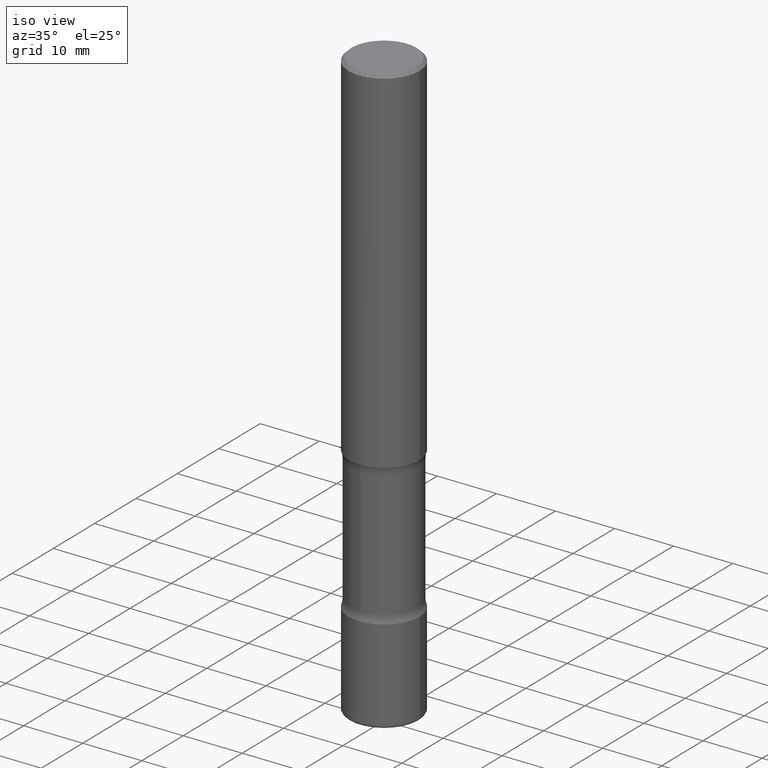
[diagram: clean part render]
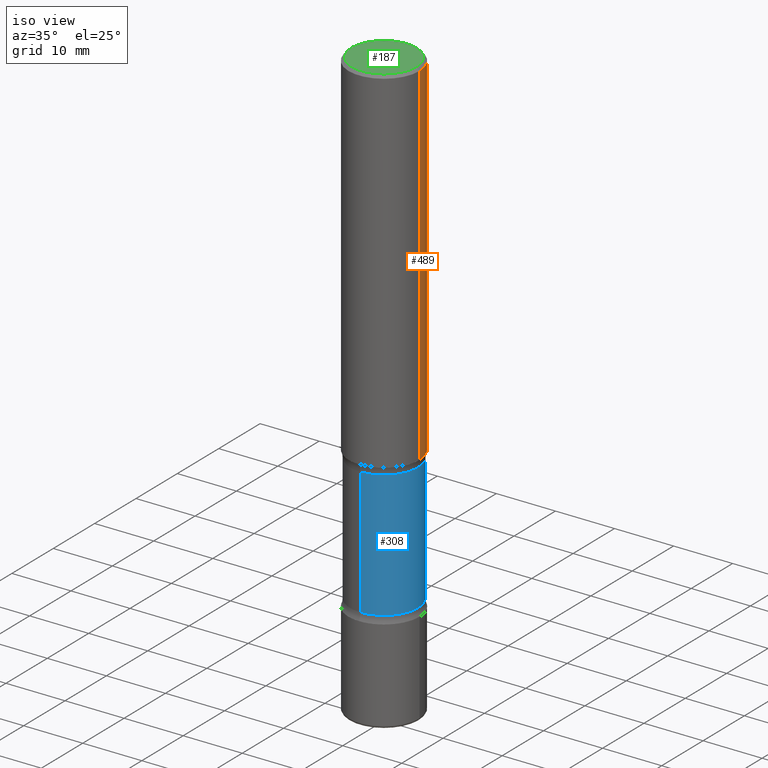
[diagram: same view with three faces highlighted in distinct colors, each labeled with its STEP entity id]
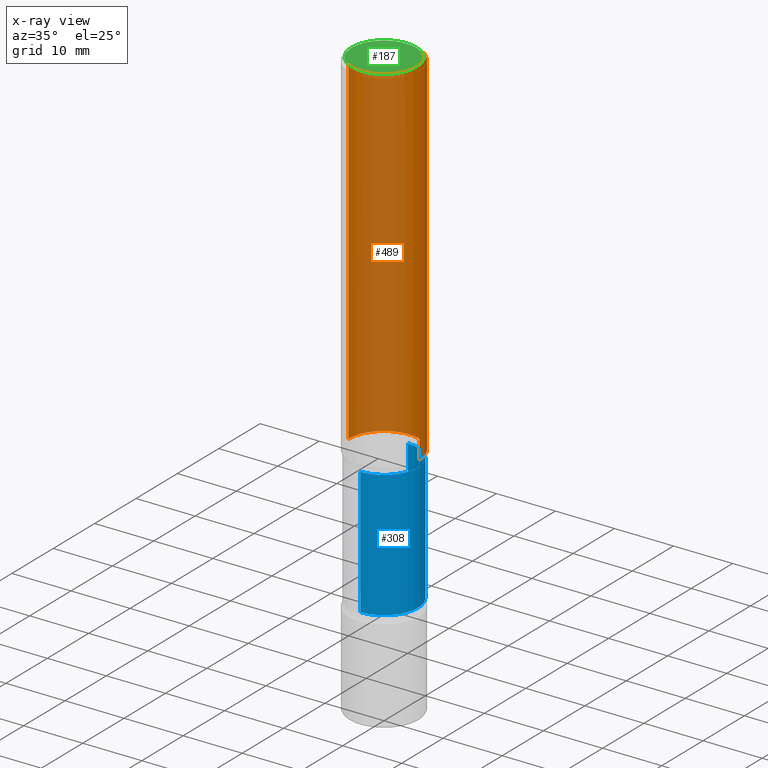
[diagram: x-ray of the same camera — body ghosted, the three highlighted faces saturated]
A machine part, iso view with three faces highlighted in distinct colors.
The next image is the same camera in x-ray (body ghosted, the three faces saturated) — at least one of them is partly hidden behind the body in this view.
Their STEP definitions:

[orange] entity #489 — the highlighted cylindrical surface (partial cylindrical patch) has radius 5.9995 mm, axis along (-0, 0, 1).
#22 = LINE ( 'NONE', #188, #184 ) ;
#24 = CARTESIAN_POINT ( 'NONE',  ( -0.2362000000000001598, -2.480401480830709941E-15, -2.362200000000000077 ) ) ;
#33 = ORIENTED_EDGE ( 'NONE', *, *, #483, .T. ) ;
#36 = VERTEX_POINT ( 'NONE', #24 ) ;
#102 = ORIENTED_EDGE ( 'NONE', *, *, #536, .T. ) ;
#108 = CYLINDRICAL_SURFACE ( 'NONE', #185, 0.2361999999999999933 ) ;
#112 = DIRECTION ( 'NONE',  ( 1.000000000000000000, -6.982962677686266711E-15, 0.000000000000000000 ) ) ;
#122 = CARTESIAN_POINT ( 'NONE',  ( 0.2361999999999998545, -1.690279253850497785E-15, -0.02000000000000006981 ) ) ;
#149 = CARTESIAN_POINT ( 'NONE',  ( 0.2362000000000001598, -9.896953003084776152E-15, -2.362200000000000077 ) ) ;
#162 = AXIS2_PLACEMENT_3D ( 'NONE', #518, #421, #112 ) ;
#181 = EDGE_CURVE ( 'NONE', #433, #512, #22, .T. ) ;
#184 = VECTOR ( 'NONE', #537, 39.37007874015748143 ) ;
#185 = AXIS2_PLACEMENT_3D ( 'NONE', #458, #560, #370 ) ;
#188 = CARTESIAN_POINT ( 'NONE',  ( 0.2361999999999999933, -1.649375784469496131E-15, 1.151752954443000088E-29 ) ) ;
#225 = CARTESIAN_POINT ( 'NONE',  ( -0.2361999999999998545, 1.579546157692632044E-15, -0.02000000000000006981 ) ) ;
#253 = VECTOR ( 'NONE', #499, 39.37007874015748143 ) ;
#275 = ORIENTED_EDGE ( 'NONE', *, *, #181, .F. ) ;
#329 = CARTESIAN_POINT ( 'NONE',  ( -0.2361999999999999933, 1.678301941865356591E-15, -1.161852468318208757E-29 ) ) ;
#334 = CARTESIAN_POINT ( 'NONE',  ( 5.776686413970529753E-29, -8.247577218615279626E-15, -2.362200000000000077 ) ) ;
#341 = FACE_OUTER_BOUND ( 'NONE', #517, .T. ) ;
#369 = ORIENTED_EDGE ( 'NONE', *, *, #500, .F. ) ;
#370 = DIRECTION ( 'NONE',  ( 1.000000000000000000, -6.982962677686266711E-15, 4.876176775795936353E-29 ) ) ;
#374 = LINE ( 'NONE', #329, #253 ) ;
#392 = VERTEX_POINT ( 'NONE', #225 ) ;
#421 = DIRECTION ( 'NONE',  ( -2.445468806185136597E-29, 3.491481338843145583E-15, 1.000000000000000000 ) ) ;
#433 = VERTEX_POINT ( 'NONE', #149 ) ;
#458 = CARTESIAN_POINT ( 'NONE',  ( 0.000000000000000000, 0.000000000000000000, 0.000000000000000000 ) ) ;
#461 = DIRECTION ( 'NONE',  ( 1.000000000000000000, -6.982962677686268288E-15, 0.000000000000000000 ) ) ;
#467 = AXIS2_PLACEMENT_3D ( 'NONE', #334, #557, #461 ) ;
#479 = CIRCLE ( 'NONE', #162, 0.2361999999999998545 ) ;
#483 = EDGE_CURVE ( 'NONE', #36, #392, #374, .T. ) ;
#489 = ADVANCED_FACE ( 'NONE', ( #341 ), #108, .T. ) ;
#499 = DIRECTION ( 'NONE',  ( -2.445468806185136877E-29, 3.491481338843145188E-15, 1.000000000000000000 ) ) ;
#500 = EDGE_CURVE ( 'NONE', #512, #392, #479, .T. ) ;
#512 = VERTEX_POINT ( 'NONE', #122 ) ;
#517 = EDGE_LOOP ( 'NONE', ( #102, #33, #369, #275 ) ) ;
#518 = CARTESIAN_POINT ( 'NONE',  ( 4.890937612370289799E-31, -6.982962677686315028E-17, -0.02000000000000006981 ) ) ;
#536 = EDGE_CURVE ( 'NONE', #433, #36, #542, .T. ) ;
#537 = DIRECTION ( 'NONE',  ( -2.445468806185136877E-29, 3.491481338843145188E-15, 1.000000000000000000 ) ) ;
#542 = CIRCLE ( 'NONE', #467, 0.2362000000000001598 ) ;
#557 = DIRECTION ( 'NONE',  ( -2.445468806185136597E-29, 3.491481338843145583E-15, 1.000000000000000000 ) ) ;
#560 = DIRECTION ( 'NONE',  ( -2.445468806185136597E-29, 3.491481338843145583E-15, 1.000000000000000000 ) ) ;

[blue] entity #308 — the highlighted cylindrical surface (partial cylindrical patch) has radius 5.7391 mm, axis along (0, -0, -1).
#6 = AXIS2_PLACEMENT_3D ( 'NONE', #130, #473, #86 ) ;
#23 = CARTESIAN_POINT ( 'NONE',  ( 1.577800417023309542E-15, 0.2259499999999864672, -3.937000000000000721 ) ) ;
#35 = EDGE_CURVE ( 'NONE', #413, #116, #279, .T. ) ;
#51 = ORIENTED_EDGE ( 'NONE', *, *, #533, .F. ) ;
#86 = DIRECTION ( 'NONE',  ( 6.982962677686265922E-15, 1.000000000000000000, -2.418099573944910042E-15 ) ) ;
#95 = EDGE_CURVE ( 'NONE', #428, #413, #464, .T. ) ;
#110 = CARTESIAN_POINT ( 'NONE',  ( 1.577800417023291793E-15, 0.2259499999999886877, -3.257527452153435199 ) ) ;
#116 = VERTEX_POINT ( 'NONE', #284 ) ;
#123 = AXIS2_PLACEMENT_3D ( 'NONE', #282, #539, #236 ) ;
#130 = CARTESIAN_POINT ( 'NONE',  ( 9.708351723968114409E-29, -1.363062268620181866E-14, -3.937000000000000277 ) ) ;
#136 = VECTOR ( 'NONE', #498, 39.37007874015748143 ) ;
#140 = VERTEX_POINT ( 'NONE', #110 ) ;
#171 = CYLINDRICAL_SURFACE ( 'NONE', #6, 0.2259500000000000952 ) ;
#202 = ORIENTED_EDGE ( 'NONE', *, *, #95, .T. ) ;
#236 = DIRECTION ( 'NONE',  ( 6.982962677686265922E-15, 1.000000000000000000, -3.627149360917363879E-15 ) ) ;
#271 = CARTESIAN_POINT ( 'NONE',  ( 1.577800417023270691E-15, 0.2259499999999915743, -2.411772547846566805 ) ) ;
#279 = LINE ( 'NONE', #322, #136 ) ;
#282 = CARTESIAN_POINT ( 'NONE',  ( 5.783435094127386859E-29, -8.584599917104405503E-15, -2.411772547846565917 ) ) ;
#284 = CARTESIAN_POINT ( 'NONE',  ( -1.585289574834976853E-15, -0.2259500000000114195, -3.257527452153434311 ) ) ;
#287 = DIRECTION ( 'NONE',  ( 2.573332013070723283E-29, -3.308373949061201717E-15, -1.000000000000000000 ) ) ;
#303 = VECTOR ( 'NONE', #538, 39.37007874015748143 ) ;
#308 = ADVANCED_FACE ( 'NONE', ( #354 ), #171, .T. ) ;
#322 = CARTESIAN_POINT ( 'NONE',  ( -1.550129522596380948E-15, -0.2259500000000137232, -3.936999999999999389 ) ) ;
#354 = FACE_OUTER_BOUND ( 'NONE', #390, .T. ) ;
#390 = EDGE_LOOP ( 'NONE', ( #202, #550, #51, #503 ) ) ;
#395 = CIRCLE ( 'NONE', #466, 0.2259500000000000397 ) ;
#412 = CARTESIAN_POINT ( 'NONE',  ( 7.959843264591818864E-29, -1.138267340980399904E-14, -3.257527452153434755 ) ) ;
#413 = VERTEX_POINT ( 'NONE', #532 ) ;
#428 = VERTEX_POINT ( 'NONE', #271 ) ;
#431 = EDGE_CURVE ( 'NONE', #428, #140, #440, .T. ) ;
#440 = LINE ( 'NONE', #23, #303 ) ;
#464 = CIRCLE ( 'NONE', #123, 0.2259500000000001507 ) ;
#466 = AXIS2_PLACEMENT_3D ( 'NONE', #412, #287, #551 ) ;
#473 = DIRECTION ( 'NONE',  ( 2.573332013070723283E-29, -3.308373949061201717E-15, -1.000000000000000000 ) ) ;
#498 = DIRECTION ( 'NONE',  ( 2.573332013070723283E-29, -3.308373949061201717E-15, -1.000000000000000000 ) ) ;
#503 = ORIENTED_EDGE ( 'NONE', *, *, #431, .F. ) ;
#532 = CARTESIAN_POINT ( 'NONE',  ( -1.585289574835001111E-15, -0.2259500000000087272, -2.411772547846565029 ) ) ;
#533 = EDGE_CURVE ( 'NONE', #140, #116, #395, .T. ) ;
#538 = DIRECTION ( 'NONE',  ( 2.573332013070723283E-29, -3.308373949061201717E-15, -1.000000000000000000 ) ) ;
#539 = DIRECTION ( 'NONE',  ( 2.573332013070723283E-29, -3.308373949061201717E-15, -1.000000000000000000 ) ) ;
#550 = ORIENTED_EDGE ( 'NONE', *, *, #35, .T. ) ;
#551 = DIRECTION ( 'NONE',  ( 6.982962677686266711E-15, 1.000000000000000000, -2.418099573944910436E-15 ) ) ;

[green] entity #187 — the highlighted planar face has unit normal (0, -0, -1).
#16 = DIRECTION ( 'NONE',  ( -1.000000000000000000, 6.982962677686265922E-15, -4.876176775795935793E-29 ) ) ;
#63 = CARTESIAN_POINT ( 'NONE',  ( -0.2161999999999998090, 1.544631344304200789E-15, 4.268512490089730842E-18 ) ) ;
#115 = CIRCLE ( 'NONE', #496, 0.2161999999999998090 ) ;
#127 = CARTESIAN_POINT ( 'NONE',  ( -1.043851414335219820E-46, 1.490343170380447200E-32, 4.268512490100411279E-18 ) ) ;
#139 = DIRECTION ( 'NONE',  ( 2.438088387897960049E-29, -3.491481338843145188E-15, -1.000000000000000000 ) ) ;
#156 = VERTEX_POINT ( 'NONE', #63 ) ;
#160 = DIRECTION ( 'NONE',  ( -2.445468806185136597E-29, 3.491481338843145583E-15, 1.000000000000000000 ) ) ;
#166 = VERTEX_POINT ( 'NONE', #244 ) ;
#178 = ORIENTED_EDGE ( 'NONE', *, *, #281, .T. ) ;
#182 = DIRECTION ( 'NONE',  ( -2.445468806185136597E-29, 3.491481338843145583E-15, 1.000000000000000000 ) ) ;
#187 = ADVANCED_FACE ( 'NONE', ( #521 ), #516, .F. ) ;
#216 = DIRECTION ( 'NONE',  ( 1.000000000000000000, -6.982962677686266711E-15, 4.876217060660160159E-29 ) ) ;
#231 = CIRCLE ( 'NONE', #358, 0.2161999999999998090 ) ;
#244 = CARTESIAN_POINT ( 'NONE',  ( 0.2161999999999998090, -1.586759460484350805E-15, 4.268512490111238857E-18 ) ) ;
#248 = CARTESIAN_POINT ( 'NONE',  ( -1.043851414335219820E-46, 1.490343170380447200E-32, 4.268512490100411279E-18 ) ) ;
#281 = EDGE_CURVE ( 'NONE', #166, #156, #231, .T. ) ;
#285 = EDGE_LOOP ( 'NONE', ( #463, #178 ) ) ;
#358 = AXIS2_PLACEMENT_3D ( 'NONE', #127, #182, #216 ) ;
#463 = ORIENTED_EDGE ( 'NONE', *, *, #475, .T. ) ;
#474 = CARTESIAN_POINT ( 'NONE',  ( 1.509716530915769337E-15, 0.2161999999999998090, -7.527240092128372163E-16 ) ) ;
#475 = EDGE_CURVE ( 'NONE', #156, #166, #115, .T. ) ;
#496 = AXIS2_PLACEMENT_3D ( 'NONE', #248, #160, #545 ) ;
#505 = AXIS2_PLACEMENT_3D ( 'NONE', #474, #139, #16 ) ;
#516 = PLANE ( 'NONE',  #505 ) ;
#521 = FACE_OUTER_BOUND ( 'NONE', #285, .T. ) ;
#545 = DIRECTION ( 'NONE',  ( 1.000000000000000000, -6.982962677686266711E-15, 4.876217060660160159E-29 ) ) ;